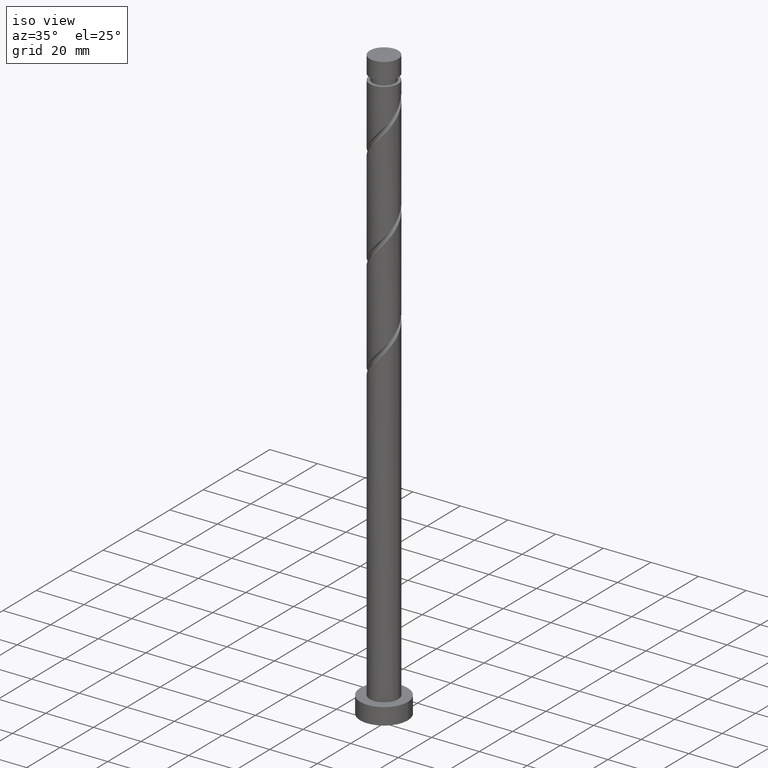
[diagram: clean part render]
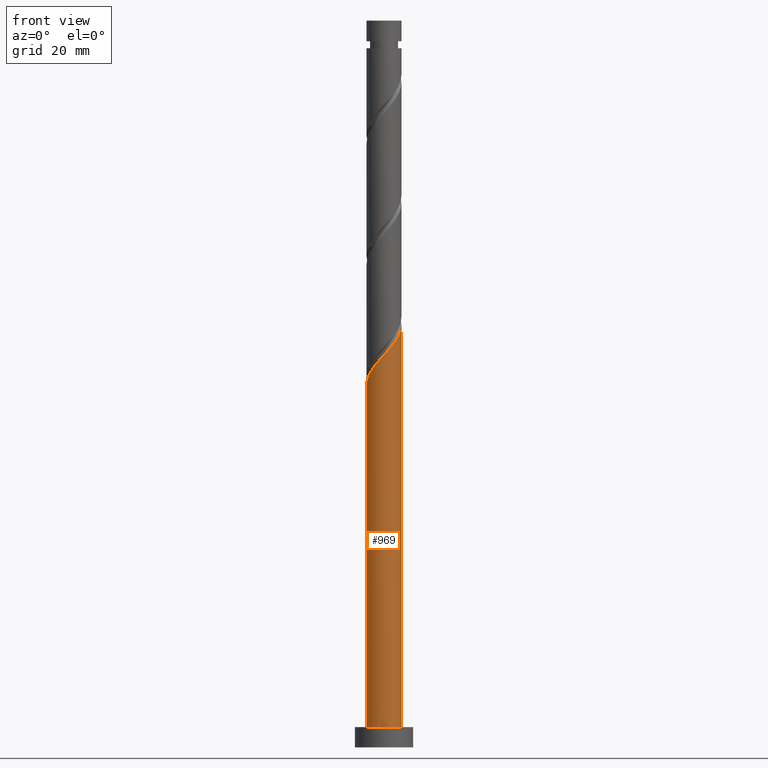
[diagram: tour spotlight — one face highlighted and labeled with its STEP entity id]
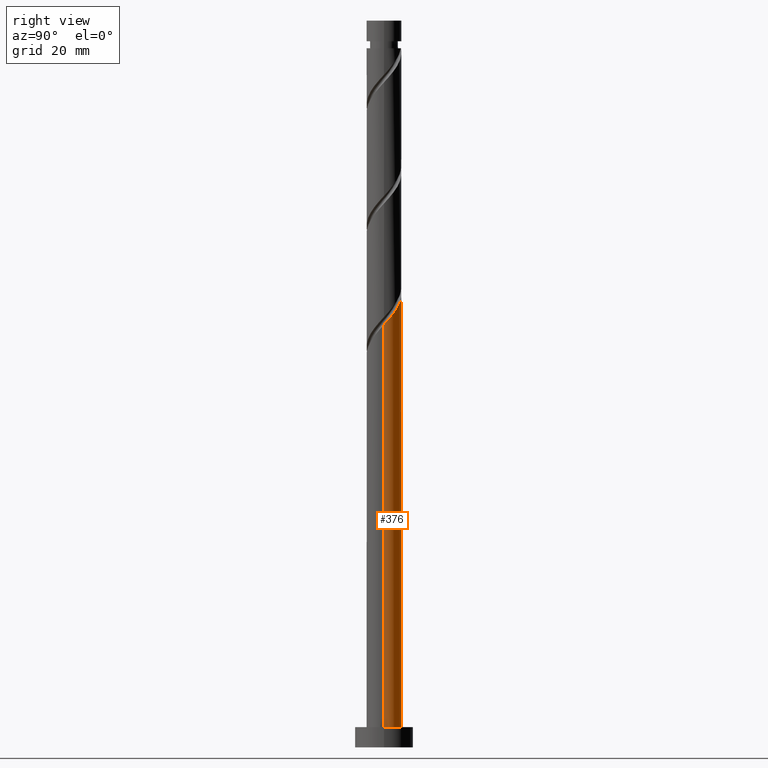
[diagram: tour spotlight — one face highlighted and labeled with its STEP entity id]
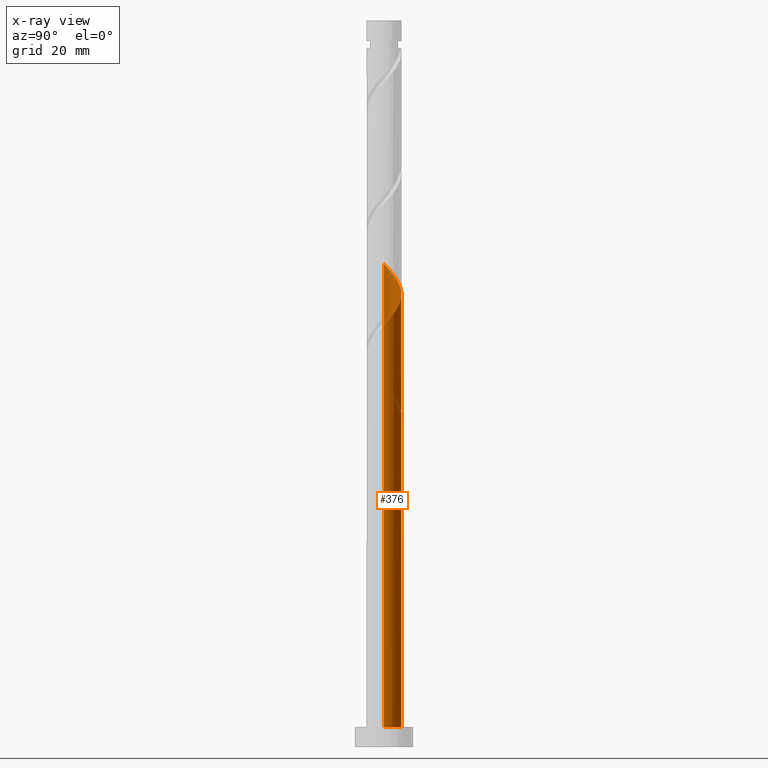
[diagram: x-ray of the same camera — body ghosted, this tour face saturated]
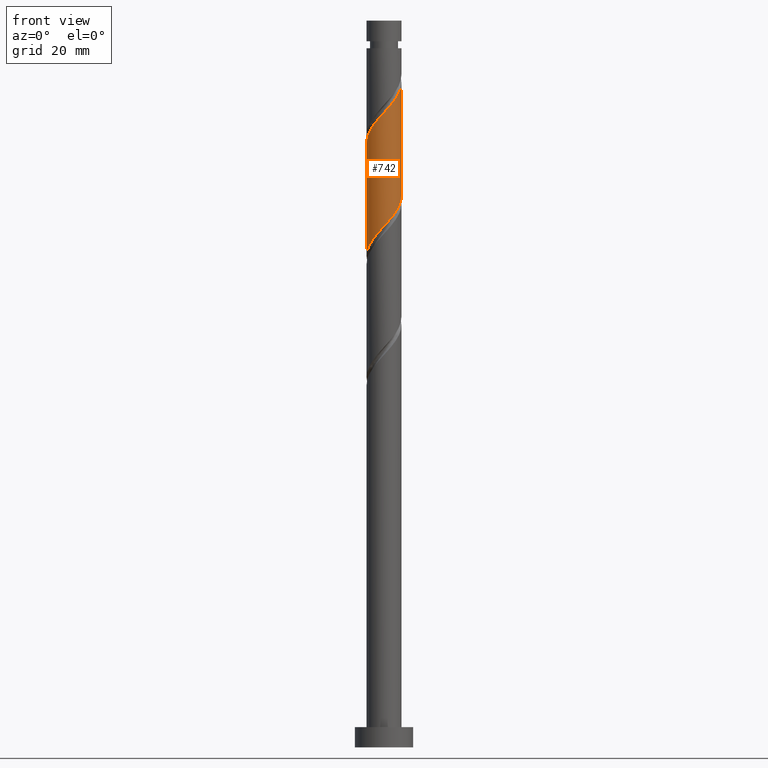
[diagram: tour spotlight — one face highlighted and labeled with its STEP entity id]
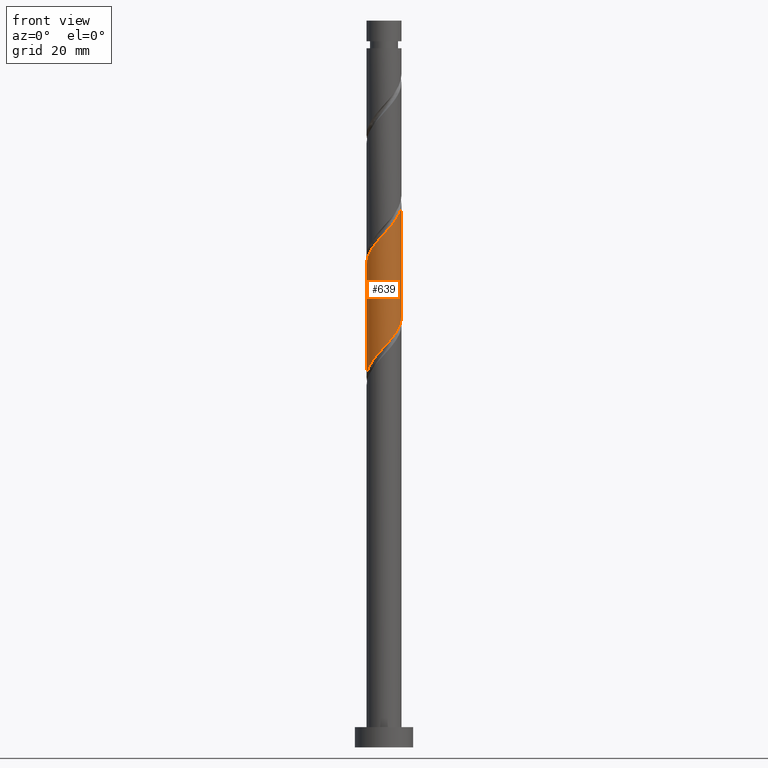
[diagram: tour spotlight — one face highlighted and labeled with its STEP entity id]
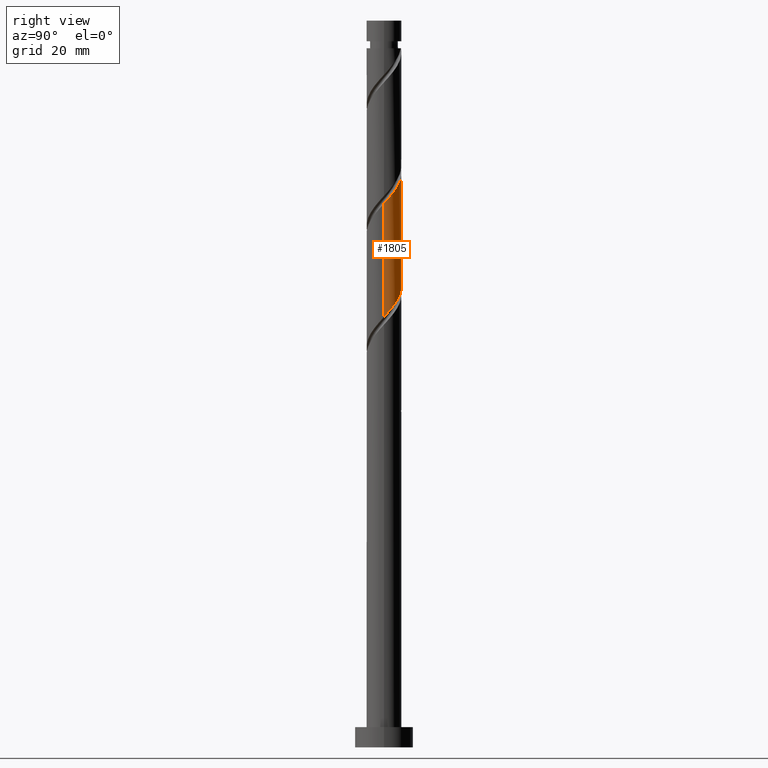
[diagram: tour spotlight — one face highlighted and labeled with its STEP entity id]
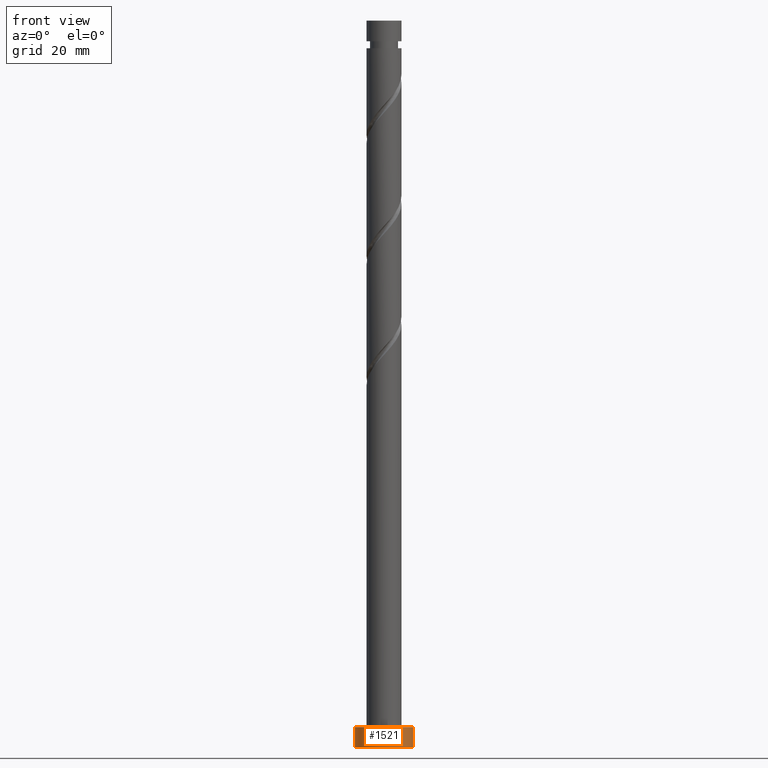
[diagram: tour spotlight — one face highlighted and labeled with its STEP entity id]
A machine part: a face-by-face anatomy tour. The part has 21 B-rep faces; the first image is the clean iso view, then the 6 largest visible faces are spotlighted one at a time (largest first), each with its STEP entity span.

Face 1 — front view, entity #969. In plain terms, the highlighted cylindrical surface (edge-blend (fillet) strip) has radius 6 mm, axis along (-0, -0, -1).
Definition (entity closure, byte-faithful):
#4 = CIRCLE ( 'NONE', #679, 6.000000000000000888 ) ;
#25 = CARTESIAN_POINT ( 'NONE',  ( 6.000000000000008882, 1.046915697330070137E-15, 145.4212293058632781 ) ) ;
#35 = CARTESIAN_POINT ( 'NONE',  ( 3.789793397579724665, -4.651608969341815225, 139.5376127202167140 ) ) ;
#57 = LINE ( 'NONE', #613, #1374 ) ;
#61 = ORIENTED_EDGE ( 'NONE', *, *, #1017, .F. ) ;
#81 = DIRECTION ( 'NONE',  ( 0.000000000000000000, 0.000000000000000000, 1.000000000000000000 ) ) ;
#90 =( BOUNDED_CURVE ( )  B_SPLINE_CURVE ( 2, ( #873, #176, #424, #731, #1133, #1600, #1421, #1282, #1308, #1707, #1572, #459, #323, #1716, #295, #1430, #882, #714, #1290, #573, #35, #440, #304, #862, #1439, #168, #722, #1298, #25 ),
 .UNSPECIFIED., .F., .T. ) 
 B_SPLINE_CURVE_WITH_KNOTS ( ( 3, 2, 2, 2, 2, 2, 2, 2, 2, 2, 2, 2, 2, 2, 3 ),
 ( 0.05452716259738328575, 0.05769230769230770939, 0.06730769230769229061, 0.07692307692307687184, 0.08653846153846156408, 0.09615384615384614531, 0.1057692307692307265, 0.1153846153846154188, 0.1249999999999999861, 0.1346153846153845812, 0.1442307692307692735, 0.1538461538461538547, 0.1634615384615384359, 0.1730769230769231282, 0.1795271625973832719 ),
 .UNSPECIFIED. ) 
 CURVE ( )  GEOMETRIC_REPRESENTATION_ITEM ( )  RATIONAL_B_SPLINE_CURVE ( ( 0.9061636035682811841, 0.9069090390690699444, 0.9090909090909264911, 0.9024626128164299210, 0.9090909090909264911, 0.9024626128164299210, 0.9090909090909264911, 0.9024626128164299210, 0.9090909090909264911, 0.9024626128164299210, 0.9090909090909264911, 0.9024626128164299210, 0.9090909090909264911, 0.9024626128164299210, 0.9090909090909264911, 0.9024626128164299210, 0.9090909090909264911, 0.9024626128164299210, 0.9090909090909264911, 0.9024626128164299210, 0.9090909090909264911, 0.9024626128164299210, 0.9090909090909264911, 0.9024626128164299210, 0.9090909090909264911, 0.9024626128164299210, 0.9090909090909264911, 0.9046444828382864678, 0.9061636035682811841 ) ) 
 REPRESENTATION_ITEM ( '' )  );
#168 = CARTESIAN_POINT ( 'NONE',  ( 5.803669174988027812, -1.687656018162604576, 143.5440229766269624 ) ) ;
#176 = CARTESIAN_POINT ( 'NONE',  ( -6.000000000000009770, -0.2386387820206062882, 124.8520668881629518 ) ) ;
#295 = CARTESIAN_POINT ( 'NONE',  ( -0.2478862134103723414, -5.994877181827929391, 134.7299204125243648 ) ) ;
#304 = CARTESIAN_POINT ( 'NONE',  ( 4.792871779619308548, -3.609484742193674656, 141.1401768227808304 ) ) ;
#313 = CARTESIAN_POINT ( 'NONE',  ( 0.000000000000000000, 0.000000000000000000, 250.0000000000000000 ) ) ;
#323 = CARTESIAN_POINT ( 'NONE',  ( -1.675351105655001005, -5.761353892339948324, 133.1273563099602768 ) ) ;
#424 = CARTESIAN_POINT ( 'NONE',  ( -5.981047158774067007, -0.4765237502168855888, 125.1145357971398226 ) ) ;
#440 = CARTESIAN_POINT ( 'NONE',  ( 4.354600983811662829, -4.191444739005057762, 140.3388947714988149 ) ) ;
#459 = CARTESIAN_POINT ( 'NONE',  ( -2.374906121308207219, -5.557929438497708929, 132.3260742586782612 ) ) ;
#499 = DIRECTION ( 'NONE',  ( 1.000000000000000000, 0.000000000000000000, 0.000000000000000000 ) ) ;
#545 = VERTEX_POINT ( 'NONE', #1838 ) ;
#573 = CARTESIAN_POINT ( 'NONE',  ( 3.224985811347784725, -5.111773199678576241, 138.7363306689346985 ) ) ;
#583 = DIRECTION ( 'NONE',  ( -0.000000000000000000, -0.000000000000000000, -1.000000000000000000 ) ) ;
#594 = FACE_OUTER_BOUND ( 'NONE', #1720, .T. ) ;
#613 = CARTESIAN_POINT ( 'NONE',  ( -6.000000000000000888, 0.000000000000000000, 250.0000000000000000 ) ) ;
#622 = DIRECTION ( 'NONE',  ( -0.000000000000000000, -0.000000000000000000, -1.000000000000000000 ) ) ;
#658 = EDGE_CURVE ( 'NONE', #1032, #545, #57, .T. ) ;
#679 = AXIS2_PLACEMENT_3D ( 'NONE', #779, #81, #499 ) ;
#696 = DIRECTION ( 'NONE',  ( -1.000000000000000000, 0.000000000000000000, 0.000000000000000000 ) ) ;
#714 = CARTESIAN_POINT ( 'NONE',  ( 1.907946185874837886, -5.735023982526343822, 137.1337665663705536 ) ) ;
#722 = CARTESIAN_POINT ( 'NONE',  ( 5.921288396282968769, -0.9686814378549655213, 144.3453050279090348 ) ) ;
#731 = CARTESIAN_POINT ( 'NONE',  ( -5.923186699970223401, -1.202754357981100197, 125.9158178484218809 ) ) ;
#779 = CARTESIAN_POINT ( 'NONE',  ( 0.000000000000000000, 0.000000000000000000, 7.000000000000000000 ) ) ;
#852 = CYLINDRICAL_SURFACE ( 'NONE', #1223, 6.000000000000000888 ) ;
#862 = CARTESIAN_POINT ( 'NONE',  ( 5.231142575426955155, -3.027524745382295546, 141.9414588740628744 ) ) ;
#873 = CARTESIAN_POINT ( 'NONE',  ( -6.000000000000008882, -1.764800746927832545E-15, 124.5878959725299922 ) ) ;
#882 = CARTESIAN_POINT ( 'NONE',  ( 1.193984924527945246, -5.880000000000008775, 136.3324845150885665 ) ) ;
#933 = CARTESIAN_POINT ( 'NONE',  ( 6.000000000000008882, 1.046915697330070137E-15, 145.4212293058632781 ) ) ;
#969 = ADVANCED_FACE ( 'NONE', ( #594 ), #852, .T. ) ;
#1017 = EDGE_CURVE ( 'NONE', #1032, #1576, #90, .T. ) ;
#1032 = VERTEX_POINT ( 'NONE', #1152 ) ;
#1064 = CARTESIAN_POINT ( 'NONE',  ( 6.000000000000000888, 7.347880794884120722E-16, 7.000000000000000000 ) ) ;
#1133 = CARTESIAN_POINT ( 'NONE',  ( -5.693209200619064880, -1.894035110019486767, 126.7170998997039248 ) ) ;
#1152 = CARTESIAN_POINT ( 'NONE',  ( -6.000000000000008882, -1.764800746927832545E-15, 124.5878959725299922 ) ) ;
#1164 = EDGE_CURVE ( 'NONE', #1576, #1748, #1181, .T. ) ;
#1181 = LINE ( 'NONE', #1744, #1458 ) ;
#1183 = DIRECTION ( 'NONE',  ( -0.000000000000000000, -0.000000000000000000, -1.000000000000000000 ) ) ;
#1223 = AXIS2_PLACEMENT_3D ( 'NONE', #313, #583, #696 ) ;
#1282 = CARTESIAN_POINT ( 'NONE',  ( -4.685773534127142703, -3.817628205472646918, 129.1209460535500853 ) ) ;
#1290 = CARTESIAN_POINT ( 'NONE',  ( 2.566465998611311417, -5.423398591102462696, 137.9350486176525692 ) ) ;
#1298 = CARTESIAN_POINT ( 'NONE',  ( 6.000000000000008882, -0.4875386312222760865, 144.8815285685149377 ) ) ;
#1308 = CARTESIAN_POINT ( 'NONE',  ( -4.160884387701920595, -4.322851039785954974, 129.9222281048321008 ) ) ;
#1314 = ORIENTED_EDGE ( 'NONE', *, *, #1724, .T. ) ;
#1374 = VECTOR ( 'NONE', #1183, 1000.000000000000000 ) ;
#1390 = ORIENTED_EDGE ( 'NONE', *, *, #658, .T. ) ;
#1421 = CARTESIAN_POINT ( 'NONE',  ( -5.074502617697525864, -3.201472033765260239, 128.3196640022679844 ) ) ;
#1430 = CARTESIAN_POINT ( 'NONE',  ( 0.4800236631810502197, -6.024976017473672840, 135.5312024638064656 ) ) ;
#1439 = CARTESIAN_POINT ( 'NONE',  ( 5.517405875207491484, -2.357590381772447508, 142.7427409253449184 ) ) ;
#1458 = VECTOR ( 'NONE', #622, 1000.000000000000000 ) ;
#1572 = CARTESIAN_POINT ( 'NONE',  ( -3.005450681292455073, -5.193001656298486424, 131.5247922073961888 ) ) ;
#1576 = VERTEX_POINT ( 'NONE', #933 ) ;
#1600 = CARTESIAN_POINT ( 'NONE',  ( -5.463231701267906359, -2.585315862057875780, 127.5183819509859688 ) ) ;
#1627 = ORIENTED_EDGE ( 'NONE', *, *, #1164, .F. ) ;
#1707 = CARTESIAN_POINT ( 'NONE',  ( -3.635995241276700263, -4.828073874099263030, 130.7235101561141448 ) ) ;
#1716 = CARTESIAN_POINT ( 'NONE',  ( -0.9757960900017952355, -5.964778346182185942, 133.9286383612423776 ) ) ;
#1720 = EDGE_LOOP ( 'NONE', ( #1627, #61, #1390, #1314 ) ) ;
#1724 = EDGE_CURVE ( 'NONE', #545, #1748, #4, .T. ) ;
#1744 = CARTESIAN_POINT ( 'NONE',  ( 6.000000000000000888, 7.347880794884120722E-16, 250.0000000000000000 ) ) ;
#1748 = VERTEX_POINT ( 'NONE', #1064 ) ;
#1838 = CARTESIAN_POINT ( 'NONE',  ( -6.000000000000000888, 0.000000000000000000, 7.000000000000000000 ) ) ;

Face 2 — right view, entity #376. An x-ray twin of the same camera follows (body ghosted, this face saturated) — the face is partly hidden behind the body. In plain terms, the highlighted cylindrical surface (edge-blend (fillet) strip) has radius 6 mm, axis along (-0, -0, -1).
Definition (entity closure, byte-faithful):
#15 = CARTESIAN_POINT ( 'NONE',  ( 0.4800236631810532173, 6.024976017473666623, 116.3004332330372677 ) ) ;
#20 = ORIENTED_EDGE ( 'NONE', *, *, #658, .F. ) ;
#23 = CARTESIAN_POINT ( 'NONE',  ( 3.005450681292455961, 5.193001656298486424, 152.3581255407295600 ) ) ;
#26 = DIRECTION ( 'NONE',  ( -1.000000000000000000, 0.000000000000000000, 0.000000000000000000 ) ) ;
#57 = LINE ( 'NONE', #613, #1374 ) ;
#130 = CIRCLE ( 'NONE', #531, 6.000000000000000888 ) ;
#147 = CARTESIAN_POINT ( 'NONE',  ( -5.981047158774059014, 0.4765237502168877537, 126.7170998997038964 ) ) ;
#154 = CIRCLE ( 'NONE', #1580, 6.000000000000000888 ) ;
#158 = CARTESIAN_POINT ( 'NONE',  ( -6.000000000000000888, 4.038103403987439502E-15, 127.2437397243137411 ) ) ;
#173 = CARTESIAN_POINT ( 'NONE',  ( 4.160884387701922371, 4.322851039785954974, 150.7555614381654152 ) ) ;
#181 = CARTESIAN_POINT ( 'NONE',  ( -6.000000000000008882, -1.764800746927832545E-15, 166.2545626391966209 ) ) ;
#187 = CARTESIAN_POINT ( 'NONE',  ( -6.000000000000000888, 0.000000000000000000, 250.0000000000000000 ) ) ;
#188 = CARTESIAN_POINT ( 'NONE',  ( -5.921288396282968769, 0.9686814378549650772, 123.5119716945756920 ) ) ;
#193 = CARTESIAN_POINT ( 'NONE',  ( -5.231142575426956043, 3.027524745382293325, 162.7747922073961888 ) ) ;
#196 = DIRECTION ( 'NONE',  ( -0.000000000000000000, -0.000000000000000000, -1.000000000000000000 ) ) ;
#197 = CARTESIAN_POINT ( 'NONE',  ( -4.354600983811663717, 4.191444739005056874, 119.5055614381654294 ) ) ;
#215 = CARTESIAN_POINT ( 'NONE',  ( -6.000000000000009770, 0.4875386312222773078, 124.0481952351816517 ) ) ;
#224 = CARTESIAN_POINT ( 'NONE',  ( -3.224985811347787390, 5.111773199678575352, 117.9029973356013414 ) ) ;
#270 = FACE_OUTER_BOUND ( 'NONE', #867, .T. ) ;
#302 = CARTESIAN_POINT ( 'NONE',  ( 3.635995241276702927, 4.828073874099260365, 151.5568434894474308 ) ) ;
#310 = CARTESIAN_POINT ( 'NONE',  ( -0.4800236631810495536, 6.024976017473672840, 156.3645357971398369 ) ) ;
#324 = CARTESIAN_POINT ( 'NONE',  ( -3.789793397579725109, 4.651608969341815225, 118.7042793868833854 ) ) ;
#332 = LINE ( 'NONE', #187, #418 ) ;
#333 = CARTESIAN_POINT ( 'NONE',  ( -2.566465998611312749, 5.423398591102460031, 117.1017152843192548 ) ) ;
#350 = DIRECTION ( 'NONE',  ( 1.000000000000000000, 0.000000000000000000, 0.000000000000000000 ) ) ;
#366 = CARTESIAN_POINT ( 'NONE',  ( 0.000000000000000000, 0.000000000000000000, 7.000000000000000000 ) ) ;
#376 = ADVANCED_FACE ( 'NONE', ( #270 ), #1651, .T. ) ;
#397 = EDGE_CURVE ( 'NONE', #1833, #536, #154, .T. ) ;
#418 = VECTOR ( 'NONE', #196, 1000.000000000000000 ) ;
#432 = CARTESIAN_POINT ( 'NONE',  ( -2.374906121308203222, 5.557929438497705377, 119.5055614381654436 ) ) ;
#434 = CARTESIAN_POINT ( 'NONE',  ( -1.193984924527944358, 5.880000000000007887, 115.4991511817551952 ) ) ;
#438 = CARTESIAN_POINT ( 'NONE',  ( 5.923186699970223401, 1.202754357981099087, 146.7491511817551384 ) ) ;
#447 = CARTESIAN_POINT ( 'NONE',  ( 0.2478862134103759218, 5.994877181827931167, 155.5632537458577644 ) ) ;
#450 = CARTESIAN_POINT ( 'NONE',  ( -4.160884387701912601, 4.322851039785952310, 121.9094075920115756 ) ) ;
#469 = CARTESIAN_POINT ( 'NONE',  ( -1.907946185874839440, 5.735023982526343822, 116.3004332330372250 ) ) ;
#494 = CARTESIAN_POINT ( 'NONE',  ( -5.517405875207491484, 2.357590381772447508, 121.9094075920115614 ) ) ;
#531 = AXIS2_PLACEMENT_3D ( 'NONE', #366, #794, #350 ) ;
#536 = VERTEX_POINT ( 'NONE', #1693 ) ;
#545 = VERTEX_POINT ( 'NONE', #1838 ) ;
#565 = CARTESIAN_POINT ( 'NONE',  ( -1.675351105654997008, 5.761353892339941218, 118.7042793868833712 ) ) ;
#569 = ORIENTED_EDGE ( 'NONE', *, *, #944, .F. ) ;
#580 = CARTESIAN_POINT ( 'NONE',  ( 2.374906121308208995, 5.557929438497708929, 153.1594075920115472 ) ) ;
#582 = EDGE_CURVE ( 'NONE', #1833, #1032, #1745, .T. ) ;
#589 = CARTESIAN_POINT ( 'NONE',  ( -2.566465998611312749, 5.423398591102460031, 158.7683819509859120 ) ) ;
#609 = CARTESIAN_POINT ( 'NONE',  ( -5.517405875207491484, 2.357590381772447508, 163.5760742586782328 ) ) ;
#613 = CARTESIAN_POINT ( 'NONE',  ( -6.000000000000000888, 0.000000000000000000, 250.0000000000000000 ) ) ;
#622 = DIRECTION ( 'NONE',  ( -0.000000000000000000, -0.000000000000000000, -1.000000000000000000 ) ) ;
#658 = EDGE_CURVE ( 'NONE', #1032, #545, #57, .T. ) ;
#693 = ORIENTED_EDGE ( 'NONE', *, *, #1506, .F. ) ;
#698 = CARTESIAN_POINT ( 'NONE',  ( 0.000000000000000000, 0.000000000000000000, 115.4991511817551952 ) ) ;
#704 = CARTESIAN_POINT ( 'NONE',  ( -3.635995241276694490, 4.828073874099260365, 121.1081255407295743 ) ) ;
#708 =( BOUNDED_CURVE ( )  B_SPLINE_CURVE ( 2, ( #158, #1272, #147, #844, #990, #1582, #1143, #1836, #450, #704, #1449, #432, #565, #981, #1699, #15, #1007 ),
 .UNSPECIFIED., .F., .T. ) 
 B_SPLINE_CURVE_WITH_KNOTS ( ( 3, 2, 2, 2, 2, 2, 2, 2, 3 ),
 ( 0.9295271625973833274, 0.9326923076923077094, 0.9423076923076922906, 0.9519230769230768718, 0.9615384615384615641, 0.9711538461538461453, 0.9807692307692307265, 0.9903846153846154188, 1.000000000000000000 ),
 .UNSPECIFIED. ) 
 CURVE ( )  GEOMETRIC_REPRESENTATION_ITEM ( )  RATIONAL_B_SPLINE_CURVE ( ( 0.9061636035682755219, 0.9069090390690641712, 0.9090909090909207180, 0.9024626128164241479, 0.9090909090909207180, 0.9024626128164241479, 0.9090909090909207180, 0.9024626128164241479, 0.9090909090909207180, 0.9024626128164241479, 0.9090909090909207180, 0.9024626128164241479, 0.9090909090909207180, 0.9024626128164241479, 0.9090909090909207180, 0.9024626128164241479, 0.9090909090909207180 ) ) 
 REPRESENTATION_ITEM ( '' )  );
#749 = CARTESIAN_POINT ( 'NONE',  ( -3.789793397579725109, 4.651608969341815225, 160.3709460535500284 ) ) ;
#753 = CARTESIAN_POINT ( 'NONE',  ( -6.000000000000008882, -1.764800746927832545E-15, 166.2545626391966209 ) ) ;
#764 = CARTESIAN_POINT ( 'NONE',  ( -6.000000000000008882, -1.764800746927832545E-15, 124.5878959725299922 ) ) ;
#794 = DIRECTION ( 'NONE',  ( 0.000000000000000000, 0.000000000000000000, 1.000000000000000000 ) ) ;
#828 = CARTESIAN_POINT ( 'NONE',  ( 0.000000000000000000, 0.000000000000000000, 250.0000000000000000 ) ) ;
#844 = CARTESIAN_POINT ( 'NONE',  ( -5.923186699970216296, 1.202754357981100419, 125.9158178484218951 ) ) ;
#848 = VERTEX_POINT ( 'NONE', #1226 ) ;
#867 = EDGE_LOOP ( 'NONE', ( #693, #1635, #1240, #20, #1012, #1092, #569, #1595 ) ) ;
#879 = CARTESIAN_POINT ( 'NONE',  ( -5.803669174988029589, 1.687656018162601024, 164.3773563099602768 ) ) ;
#883 = CARTESIAN_POINT ( 'NONE',  ( -4.792871779619309436, 3.609484742193674212, 120.3068434894474876 ) ) ;
#888 = CARTESIAN_POINT ( 'NONE',  ( 4.685773534127145368, 3.817628205472644254, 149.9542793868833428 ) ) ;
#904 = CARTESIAN_POINT ( 'NONE',  ( -1.193984924527944358, 5.880000000000007887, 115.4991511817551952 ) ) ;
#931 = DIRECTION ( 'NONE',  ( -1.000000000000000000, 0.000000000000000000, 0.000000000000000000 ) ) ;
#933 = CARTESIAN_POINT ( 'NONE',  ( 6.000000000000008882, 1.046915697330070137E-15, 145.4212293058632781 ) ) ;
#944 = EDGE_CURVE ( 'NONE', #848, #536, #708, .T. ) ;
#981 = CARTESIAN_POINT ( 'NONE',  ( -0.9757960900017910166, 5.964778346182179725, 117.9029973356013556 ) ) ;
#990 = CARTESIAN_POINT ( 'NONE',  ( -5.693209200619056887, 1.894035110019486767, 125.1145357971398226 ) ) ;
#1005 = CARTESIAN_POINT ( 'NONE',  ( 0.9757960900017957906, 5.964778346182185942, 154.7619716945756920 ) ) ;
#1007 = CARTESIAN_POINT ( 'NONE',  ( 1.193984924527946578, 5.880000000000001670, 115.4991511817551810 ) ) ;
#1012 = ORIENTED_EDGE ( 'NONE', *, *, #582, .F. ) ;
#1023 = CARTESIAN_POINT ( 'NONE',  ( 6.000000000000009770, 0.2386387820206061217, 145.6854002214962236 ) ) ;
#1032 = VERTEX_POINT ( 'NONE', #1152 ) ;
#1035 = CARTESIAN_POINT ( 'NONE',  ( 5.074502617697525864, 3.201472033765261127, 149.1529973356012704 ) ) ;
#1064 = CARTESIAN_POINT ( 'NONE',  ( 6.000000000000000888, 7.347880794884120722E-16, 7.000000000000000000 ) ) ;
#1076 = EDGE_CURVE ( 'NONE', #1200, #848, #332, .T. ) ;
#1092 = ORIENTED_EDGE ( 'NONE', *, *, #397, .T. ) ;
#1143 = CARTESIAN_POINT ( 'NONE',  ( -5.074502617697516094, 3.201472033765258463, 123.5119716945756920 ) ) ;
#1152 = CARTESIAN_POINT ( 'NONE',  ( -6.000000000000008882, -1.764800746927832545E-15, 124.5878959725299922 ) ) ;
#1159 = CARTESIAN_POINT ( 'NONE',  ( -3.224985811347787390, 5.111773199678575352, 159.5696640022679560 ) ) ;
#1164 = EDGE_CURVE ( 'NONE', #1576, #1748, #1181, .T. ) ;
#1178 = CARTESIAN_POINT ( 'NONE',  ( -5.921288396282968769, 0.9686814378549650772, 165.1786383612423492 ) ) ;
#1181 = LINE ( 'NONE', #1744, #1458 ) ;
#1183 = DIRECTION ( 'NONE',  ( -0.000000000000000000, -0.000000000000000000, -1.000000000000000000 ) ) ;
#1200 = VERTEX_POINT ( 'NONE', #753 ) ;
#1226 = CARTESIAN_POINT ( 'NONE',  ( -6.000000000000000888, 4.038103403987439502E-15, 127.2437397243137411 ) ) ;
#1240 = ORIENTED_EDGE ( 'NONE', *, *, #1710, .T. ) ;
#1272 = CARTESIAN_POINT ( 'NONE',  ( -6.000000000000001776, 0.2386387820206115340, 126.9795688086808099 ) ) ;
#1304 = CARTESIAN_POINT ( 'NONE',  ( -1.907946185874839440, 5.735023982526343822, 157.9670998997039533 ) ) ;
#1316 = CARTESIAN_POINT ( 'NONE',  ( 5.981047158774067007, 0.4765237502168834793, 145.9478691304731512 ) ) ;
#1374 = VECTOR ( 'NONE', #1183, 1000.000000000000000 ) ;
#1406 = DIRECTION ( 'NONE',  ( -0.000000000000000000, -0.000000000000000000, -1.000000000000000000 ) ) ;
#1446 = CARTESIAN_POINT ( 'NONE',  ( -1.193984924527944358, 5.880000000000008775, 157.1658178484219093 ) ) ;
#1449 = CARTESIAN_POINT ( 'NONE',  ( -3.005450681292447968, 5.193001656298481095, 120.3068434894474876 ) ) ;
#1454 = CARTESIAN_POINT ( 'NONE',  ( -6.000000000000009770, 0.4875386312222743102, 165.7148619018483089 ) ) ;
#1458 = VECTOR ( 'NONE', #622, 1000.000000000000000 ) ;
#1459 = CARTESIAN_POINT ( 'NONE',  ( -5.803669174988029589, 1.687656018162601024, 122.7106896432936054 ) ) ;
#1464 = CARTESIAN_POINT ( 'NONE',  ( 1.675351105655004114, 5.761353892339948324, 153.9606896432935912 ) ) ;
#1487 = CARTESIAN_POINT ( 'NONE',  ( -5.231142575426956043, 3.027524745382293325, 121.1081255407295458 ) ) ;
#1506 = EDGE_CURVE ( 'NONE', #1576, #1200, #1735, .T. ) ;
#1576 = VERTEX_POINT ( 'NONE', #933 ) ;
#1578 = CARTESIAN_POINT ( 'NONE',  ( 5.463231701267908136, 2.585315862057873115, 148.3517152843193685 ) ) ;
#1580 = AXIS2_PLACEMENT_3D ( 'NONE', #698, #1717, #26 ) ;
#1582 = CARTESIAN_POINT ( 'NONE',  ( -5.463231701267899254, 2.585315862057873559, 124.3132537458577787 ) ) ;
#1589 = CARTESIAN_POINT ( 'NONE',  ( 6.000000000000008882, 1.046915697330070137E-15, 145.4212293058632781 ) ) ;
#1595 = ORIENTED_EDGE ( 'NONE', *, *, #1076, .F. ) ;
#1597 = CARTESIAN_POINT ( 'NONE',  ( -4.792871779619309436, 3.609484742193674212, 161.9735101561141164 ) ) ;
#1606 = CARTESIAN_POINT ( 'NONE',  ( 5.693209200619064880, 1.894035110019484103, 147.5504332330372392 ) ) ;
#1635 = ORIENTED_EDGE ( 'NONE', *, *, #1164, .T. ) ;
#1651 = CYLINDRICAL_SURFACE ( 'NONE', #1697, 6.000000000000000888 ) ;
#1693 = CARTESIAN_POINT ( 'NONE',  ( 1.193984924527946800, 5.880000000000000782, 115.4991511817551952 ) ) ;
#1697 = AXIS2_PLACEMENT_3D ( 'NONE', #828, #1406, #931 ) ;
#1699 = CARTESIAN_POINT ( 'NONE',  ( -0.2478862134103690662, 5.994877181827922286, 117.1017152843192832 ) ) ;
#1710 = EDGE_CURVE ( 'NONE', #1748, #545, #130, .T. ) ;
#1717 = DIRECTION ( 'NONE',  ( 0.000000000000000000, -0.000000000000000000, -1.000000000000000000 ) ) ;
#1732 = CARTESIAN_POINT ( 'NONE',  ( -4.354600983811663717, 4.191444739005056874, 161.1722281048320724 ) ) ;
#1735 =( BOUNDED_CURVE ( )  B_SPLINE_CURVE ( 2, ( #1589, #1023, #1316, #438, #1606, #1578, #1035, #888, #173, #302, #23, #580, #1464, #1005, #447, #310, #1446, #1304, #589, #1159, #749, #1732, #1597, #193, #609, #879, #1178, #1454, #181 ),
 .UNSPECIFIED., .F., .T. ) 
 B_SPLINE_CURVE_WITH_KNOTS ( ( 3, 2, 2, 2, 2, 2, 2, 2, 2, 2, 2, 2, 2, 2, 3 ),
 ( 0.1795271625973832996, 0.1826923076923077094, 0.1923076923076922906, 0.2019230769230768718, 0.2115384615384615641, 0.2211538461538461453, 0.2307692307692307265, 0.2403846153846154188, 0.2500000000000000000, 0.2596153846153845812, 0.2692307692307692735, 0.2788461538461538547, 0.2884615384615384359, 0.2980769230769231282, 0.3045271625973833274 ),
 .UNSPECIFIED. ) 
 CURVE ( )  GEOMETRIC_REPRESENTATION_ITEM ( )  RATIONAL_B_SPLINE_CURVE ( ( 0.9061636035682811841, 0.9069090390690699444, 0.9090909090909264911, 0.9024626128164299210, 0.9090909090909264911, 0.9024626128164299210, 0.9090909090909264911, 0.9024626128164299210, 0.9090909090909264911, 0.9024626128164299210, 0.9090909090909264911, 0.9024626128164299210, 0.9090909090909264911, 0.9024626128164299210, 0.9090909090909264911, 0.9024626128164299210, 0.9090909090909264911, 0.9024626128164299210, 0.9090909090909264911, 0.9024626128164299210, 0.9090909090909264911, 0.9024626128164299210, 0.9090909090909264911, 0.9024626128164299210, 0.9090909090909264911, 0.9024626128164299210, 0.9090909090909264911, 0.9046444828382864678, 0.9061636035682812951 ) ) 
 REPRESENTATION_ITEM ( '' )  );
#1744 = CARTESIAN_POINT ( 'NONE',  ( 6.000000000000000888, 7.347880794884120722E-16, 250.0000000000000000 ) ) ;
#1745 =( BOUNDED_CURVE ( )  B_SPLINE_CURVE ( 2, ( #904, #469, #333, #224, #324, #197, #883, #1487, #494, #1459, #188, #215, #764 ),
 .UNSPECIFIED., .F., .T. ) 
 B_SPLINE_CURVE_WITH_KNOTS ( ( 3, 2, 2, 2, 2, 2, 3 ),
 ( 0.000000000000000000, 0.009615384615384581224, 0.01923076923076927347, 0.02884615384615385469, 0.03846153846153843592, 0.04807692307692312816, 0.05452716259738328575 ),
 .UNSPECIFIED. ) 
 CURVE ( )  GEOMETRIC_REPRESENTATION_ITEM ( )  RATIONAL_B_SPLINE_CURVE ( ( 0.9090909090909264911, 0.9024626128164299210, 0.9090909090909264911, 0.9024626128164299210, 0.9090909090909264911, 0.9024626128164299210, 0.9090909090909264911, 0.9024626128164299210, 0.9090909090909264911, 0.9024626128164299210, 0.9090909090909264911, 0.9046444828382864678, 0.9061636035682811841 ) ) 
 REPRESENTATION_ITEM ( '' )  );
#1748 = VERTEX_POINT ( 'NONE', #1064 ) ;
#1833 = VERTEX_POINT ( 'NONE', #434 ) ;
#1836 = CARTESIAN_POINT ( 'NONE',  ( -4.685773534127136486, 3.817628205472644698, 122.7106896432936622 ) ) ;
#1838 = CARTESIAN_POINT ( 'NONE',  ( -6.000000000000000888, 0.000000000000000000, 7.000000000000000000 ) ) ;

Face 3 — front view, entity #742. In plain terms, the highlighted cylindrical surface (edge-blend (fillet) strip) has radius 6 mm, axis along (-0, -0, -1).
Definition (entity closure, byte-faithful):
#38 =( BOUNDED_CURVE ( )  B_SPLINE_CURVE ( 2, ( #1665, #799, #386, #669, #835, #1534, #1243, #1376, #1105, #1524, #260, #1656, #825, #105, #251, #808, #651, #414, #1235, #406, #121, #659, #1801, #936, #1264, #1385, #816, #971, #955 ),
 .UNSPECIFIED., .F., .T. ) 
 B_SPLINE_CURVE_WITH_KNOTS ( ( 3, 2, 2, 2, 2, 2, 2, 2, 2, 2, 2, 2, 2, 2, 3 ),
 ( 0.5545271625973832164, 0.5576923076923077094, 0.5673076923076922906, 0.5769230769230768718, 0.5865384615384615641, 0.5961538461538461453, 0.6057692307692307265, 0.6153846153846154188, 0.6250000000000000000, 0.6346153846153845812, 0.6442307692307692735, 0.6538461538461538547, 0.6634615384615384359, 0.6730769230769231282, 0.6795271625973833274 ),
 .UNSPECIFIED. ) 
 CURVE ( )  GEOMETRIC_REPRESENTATION_ITEM ( )  RATIONAL_B_SPLINE_CURVE ( ( 0.9061636035682756329, 0.9069090390690641712, 0.9090909090909207180, 0.9024626128164241479, 0.9090909090909207180, 0.9024626128164241479, 0.9090909090909207180, 0.9024626128164241479, 0.9090909090909207180, 0.9024626128164241479, 0.9090909090909207180, 0.9024626128164241479, 0.9090909090909207180, 0.9024626128164241479, 0.9090909090909207180, 0.9024626128164241479, 0.9090909090909207180, 0.9024626128164241479, 0.9090909090909207180, 0.9024626128164241479, 0.9090909090909207180, 0.9024626128164241479, 0.9090909090909207180, 0.9024626128164241479, 0.9090909090909207180, 0.9024626128164241479, 0.9090909090909207180, 0.9046444828382806946, 0.9061636035682755219 ) ) 
 REPRESENTATION_ITEM ( '' )  );
#47 = CARTESIAN_POINT ( 'NONE',  ( 5.921288396282968769, -0.9686814378549655213, 227.6786383612422924 ) ) ;
#67 = CARTESIAN_POINT ( 'NONE',  ( -3.635995241276700263, -4.828073874099263030, 214.0568434894475445 ) ) ;
#105 = CARTESIAN_POINT ( 'NONE',  ( 0.9757960900017889072, -5.964778346182179725, 180.4029973356013272 ) ) ;
#111 = ORIENTED_EDGE ( 'NONE', *, *, #575, .F. ) ;
#121 = CARTESIAN_POINT ( 'NONE',  ( -3.789793397579722445, -4.651608969341807232, 174.7940229766269908 ) ) ;
#191 = ORIENTED_EDGE ( 'NONE', *, *, #1783, .T. ) ;
#205 = CARTESIAN_POINT ( 'NONE',  ( -2.374906121308207219, -5.557929438497708929, 215.6594075920116040 ) ) ;
#220 =( BOUNDED_CURVE ( )  B_SPLINE_CURVE ( 2, ( #845, #1422, #1708, #433, #1431, #991, #1573, #853, #604, #67, #1623, #205, #1478, #1775, #1027, #460, #743, #1321, #1019, #344, #1172, #1497, #1736, #1469, #1162, #913, #47, #595, #1601 ),
 .UNSPECIFIED., .F., .T. ) 
 B_SPLINE_CURVE_WITH_KNOTS ( ( 3, 2, 2, 2, 2, 2, 2, 2, 2, 2, 2, 2, 2, 2, 3 ),
 ( 0.5545271625973831053, 0.5576923076923077094, 0.5673076923076922906, 0.5769230769230768718, 0.5865384615384615641, 0.5961538461538461453, 0.6057692307692308376, 0.6153846153846154188, 0.6250000000000000000, 0.6346153846153845812, 0.6442307692307691624, 0.6538461538461538547, 0.6634615384615384359, 0.6730769230769231282, 0.6795271625973833274 ),
 .UNSPECIFIED. ) 
 CURVE ( )  GEOMETRIC_REPRESENTATION_ITEM ( )  RATIONAL_B_SPLINE_CURVE ( ( 0.9061636035682811841, 0.9069090390690697223, 0.9090909090909264911, 0.9024626128164299210, 0.9090909090909264911, 0.9024626128164299210, 0.9090909090909264911, 0.9024626128164299210, 0.9090909090909264911, 0.9024626128164299210, 0.9090909090909264911, 0.9024626128164299210, 0.9090909090909264911, 0.9024626128164299210, 0.9090909090909264911, 0.9024626128164299210, 0.9090909090909264911, 0.9024626128164299210, 0.9090909090909264911, 0.9024626128164299210, 0.9090909090909264911, 0.9024626128164299210, 0.9090909090909264911, 0.9024626128164299210, 0.9090909090909264911, 0.9024626128164299210, 0.9090909090909264911, 0.9046444828382864678, 0.9061636035682812951 ) ) 
 REPRESENTATION_ITEM ( '' )  );
#221 = CARTESIAN_POINT ( 'NONE',  ( -6.000000000000000888, 4.038103403987439502E-15, 168.9104063909803983 ) ) ;
#251 = CARTESIAN_POINT ( 'NONE',  ( 0.2478862134103671233, -5.994877181827922286, 179.6017152843192832 ) ) ;
#260 = CARTESIAN_POINT ( 'NONE',  ( 3.005450681292447079, -5.193001656298482871, 182.8068434894474876 ) ) ;
#279 = CARTESIAN_POINT ( 'NONE',  ( 6.000000000000008882, 3.858632141587972029E-15, 228.7545626391966209 ) ) ;
#344 = CARTESIAN_POINT ( 'NONE',  ( 3.224985811347784725, -5.111773199678576241, 222.0696640022679844 ) ) ;
#353 = DIRECTION ( 'NONE',  ( -1.000000000000000000, 0.000000000000000000, 0.000000000000000000 ) ) ;
#386 = CARTESIAN_POINT ( 'NONE',  ( 5.981047158774059014, -0.4765237502168911399, 189.2170998997039248 ) ) ;
#406 = CARTESIAN_POINT ( 'NONE',  ( -3.224985811347786502, -5.111773199678567359, 175.5953050279090633 ) ) ;
#414 = CARTESIAN_POINT ( 'NONE',  ( -1.907946185874840106, -5.735023982526336717, 177.1978691304731512 ) ) ;
#433 = CARTESIAN_POINT ( 'NONE',  ( -5.923186699970223401, -1.202754357981100197, 209.2491511817551952 ) ) ;
#460 = CARTESIAN_POINT ( 'NONE',  ( 0.4800236631810502197, -6.024976017473672840, 218.8645357971397800 ) ) ;
#468 = DIRECTION ( 'NONE',  ( -0.000000000000000000, -0.000000000000000000, -1.000000000000000000 ) ) ;
#486 = FACE_OUTER_BOUND ( 'NONE', #1138, .T. ) ;
#497 = ORIENTED_EDGE ( 'NONE', *, *, #1182, .F. ) ;
#575 = EDGE_CURVE ( 'NONE', #952, #1807, #220, .T. ) ;
#595 = CARTESIAN_POINT ( 'NONE',  ( 6.000000000000008882, -0.4875386312222739771, 228.2148619018482805 ) ) ;
#604 = CARTESIAN_POINT ( 'NONE',  ( -4.160884387701920595, -4.322851039785954974, 213.2555614381654152 ) ) ;
#634 = VERTEX_POINT ( 'NONE', #754 ) ;
#651 = CARTESIAN_POINT ( 'NONE',  ( -1.193984924527945690, -5.879999999999999005, 177.9991511817551668 ) ) ;
#659 = CARTESIAN_POINT ( 'NONE',  ( -4.354600983811661052, -4.191444739005048881, 173.9927409253449184 ) ) ;
#669 = CARTESIAN_POINT ( 'NONE',  ( 5.923186699970216296, -1.202754357981101085, 188.4158178484219377 ) ) ;
#677 = VECTOR ( 'NONE', #468, 1000.000000000000000 ) ;
#742 = ADVANCED_FACE ( 'NONE', ( #486 ), #1050, .T. ) ;
#743 = CARTESIAN_POINT ( 'NONE',  ( 1.193984924527945246, -5.880000000000008775, 219.6658178484217672 ) ) ;
#754 = CARTESIAN_POINT ( 'NONE',  ( 6.000000000000001776, -6.371229815180181378E-15, 189.7437397243137980 ) ) ;
#799 = CARTESIAN_POINT ( 'NONE',  ( 6.000000000000001776, -0.2386387820206061494, 189.4795688086807672 ) ) ;
#808 = CARTESIAN_POINT ( 'NONE',  ( -0.4800236631810547161, -6.024976017473666623, 178.8004332330372392 ) ) ;
#816 = CARTESIAN_POINT ( 'NONE',  ( -5.921288396282960775, -0.9686814378549607474, 169.9863306689346700 ) ) ;
#825 = CARTESIAN_POINT ( 'NONE',  ( 1.675351105654996786, -5.761353892339941218, 181.2042793868833712 ) ) ;
#835 = CARTESIAN_POINT ( 'NONE',  ( 5.693209200619056887, -1.894035110019489210, 187.6145357971397800 ) ) ;
#845 = CARTESIAN_POINT ( 'NONE',  ( -6.000000000000008882, 3.768896510388252098E-15, 207.9212293058632497 ) ) ;
#853 = CARTESIAN_POINT ( 'NONE',  ( -4.685773534127142703, -3.817628205472646918, 212.4542793868833712 ) ) ;
#863 = EDGE_CURVE ( 'NONE', #634, #1680, #38, .T. ) ;
#913 = CARTESIAN_POINT ( 'NONE',  ( 5.803669174988027812, -1.687656018162604576, 226.8773563099602484 ) ) ;
#936 = CARTESIAN_POINT ( 'NONE',  ( -5.231142575426950714, -3.027524745382286664, 172.3901768227808589 ) ) ;
#952 = VERTEX_POINT ( 'NONE', #1591 ) ;
#955 = CARTESIAN_POINT ( 'NONE',  ( -6.000000000000000888, 4.038103403987439502E-15, 168.9104063909803983 ) ) ;
#971 = CARTESIAN_POINT ( 'NONE',  ( -6.000000000000001776, -0.4875386312222717566, 169.4501071283287672 ) ) ;
#991 = CARTESIAN_POINT ( 'NONE',  ( -5.463231701267906359, -2.585315862057875780, 210.8517152843192548 ) ) ;
#1019 = CARTESIAN_POINT ( 'NONE',  ( 2.566465998611311417, -5.423398591102462696, 221.2683819509858836 ) ) ;
#1027 = CARTESIAN_POINT ( 'NONE',  ( -0.2478862134103723414, -5.994877181827929391, 218.0632537458577076 ) ) ;
#1050 = CYLINDRICAL_SURFACE ( 'NONE', #1309, 6.000000000000000888 ) ;
#1105 = CARTESIAN_POINT ( 'NONE',  ( 4.160884387701912601, -4.322851039785952310, 184.4094075920116040 ) ) ;
#1138 = EDGE_LOOP ( 'NONE', ( #497, #111, #191, #1712 ) ) ;
#1162 = CARTESIAN_POINT ( 'NONE',  ( 5.517405875207491484, -2.357590381772447508, 226.0760742586782328 ) ) ;
#1172 = CARTESIAN_POINT ( 'NONE',  ( 3.789793397579724665, -4.651608969341815225, 222.8709460535500853 ) ) ;
#1182 = EDGE_CURVE ( 'NONE', #1807, #634, #1319, .T. ) ;
#1191 = DIRECTION ( 'NONE',  ( -0.000000000000000000, -0.000000000000000000, -1.000000000000000000 ) ) ;
#1235 = CARTESIAN_POINT ( 'NONE',  ( -2.566465998611311861, -5.423398591102451149, 176.3965870791910788 ) ) ;
#1243 = CARTESIAN_POINT ( 'NONE',  ( 5.074502617697516094, -3.201472033765258907, 186.0119716945756068 ) ) ;
#1264 = CARTESIAN_POINT ( 'NONE',  ( -5.517405875207487043, -2.357590381772441734, 171.5888947714987864 ) ) ;
#1309 = AXIS2_PLACEMENT_3D ( 'NONE', #1632, #1358, #353 ) ;
#1319 = LINE ( 'NONE', #1329, #677 ) ;
#1321 = CARTESIAN_POINT ( 'NONE',  ( 1.907946185874837886, -5.735023982526343822, 220.4670998997039533 ) ) ;
#1329 = CARTESIAN_POINT ( 'NONE',  ( 6.000000000000000888, 7.347880794884120722E-16, 250.0000000000000000 ) ) ;
#1358 = DIRECTION ( 'NONE',  ( -0.000000000000000000, -0.000000000000000000, -1.000000000000000000 ) ) ;
#1363 = CARTESIAN_POINT ( 'NONE',  ( -6.000000000000000888, 0.000000000000000000, 250.0000000000000000 ) ) ;
#1376 = CARTESIAN_POINT ( 'NONE',  ( 4.685773534127132933, -3.817628205472646918, 185.2106896432936480 ) ) ;
#1385 = CARTESIAN_POINT ( 'NONE',  ( -5.803669174988022483, -1.687656018162597915, 170.7876127202167993 ) ) ;
#1422 = CARTESIAN_POINT ( 'NONE',  ( -6.000000000000011546, -0.2386387820205927157, 208.1854002214961952 ) ) ;
#1431 = CARTESIAN_POINT ( 'NONE',  ( -5.693209200619064880, -1.894035110019486767, 210.0504332330372108 ) ) ;
#1469 = CARTESIAN_POINT ( 'NONE',  ( 5.231142575426955155, -3.027524745382295546, 225.2747922073961888 ) ) ;
#1474 = LINE ( 'NONE', #1363, #1672 ) ;
#1478 = CARTESIAN_POINT ( 'NONE',  ( -1.675351105655001005, -5.761353892339948324, 216.4606896432936480 ) ) ;
#1497 = CARTESIAN_POINT ( 'NONE',  ( 4.354600983811662829, -4.191444739005057762, 223.6722281048321008 ) ) ;
#1524 = CARTESIAN_POINT ( 'NONE',  ( 3.635995241276692713, -4.828073874099260365, 183.6081255407295885 ) ) ;
#1534 = CARTESIAN_POINT ( 'NONE',  ( 5.463231701267900142, -2.585315862057872227, 186.8132537458577360 ) ) ;
#1573 = CARTESIAN_POINT ( 'NONE',  ( -5.074502617697525864, -3.201472033765260239, 211.6529973356012704 ) ) ;
#1591 = CARTESIAN_POINT ( 'NONE',  ( -6.000000000000008882, 3.768896510388252098E-15, 207.9212293058632781 ) ) ;
#1601 = CARTESIAN_POINT ( 'NONE',  ( 6.000000000000008882, 3.858632141587972029E-15, 228.7545626391966209 ) ) ;
#1623 = CARTESIAN_POINT ( 'NONE',  ( -3.005450681292455073, -5.193001656298486424, 214.8581255407295600 ) ) ;
#1632 = CARTESIAN_POINT ( 'NONE',  ( 0.000000000000000000, 0.000000000000000000, 250.0000000000000000 ) ) ;
#1656 = CARTESIAN_POINT ( 'NONE',  ( 2.374906121308202334, -5.557929438497706265, 182.0055614381655005 ) ) ;
#1665 = CARTESIAN_POINT ( 'NONE',  ( 6.000000000000000888, -6.371229815180181378E-15, 189.7437397243137980 ) ) ;
#1672 = VECTOR ( 'NONE', #1191, 1000.000000000000000 ) ;
#1680 = VERTEX_POINT ( 'NONE', #221 ) ;
#1708 = CARTESIAN_POINT ( 'NONE',  ( -5.981047158774067007, -0.4765237502168855888, 208.4478691304731228 ) ) ;
#1712 = ORIENTED_EDGE ( 'NONE', *, *, #863, .F. ) ;
#1736 = CARTESIAN_POINT ( 'NONE',  ( 4.792871779619308548, -3.609484742193674656, 224.4735101561141164 ) ) ;
#1775 = CARTESIAN_POINT ( 'NONE',  ( -0.9757960900017952355, -5.964778346182185942, 217.2619716945756636 ) ) ;
#1783 = EDGE_CURVE ( 'NONE', #952, #1680, #1474, .T. ) ;
#1801 = CARTESIAN_POINT ( 'NONE',  ( -4.792871779619305883, -3.609484742193667550, 173.1914588740628744 ) ) ;
#1807 = VERTEX_POINT ( 'NONE', #279 ) ;

Face 4 — front view, entity #639. In plain terms, the highlighted cylindrical surface (edge-blend (fillet) strip) has radius 6 mm, axis along (-0, -0, -1).
Definition (entity closure, byte-faithful):
#22 = EDGE_CURVE ( 'NONE', #144, #701, #348, .T. ) ;
#59 = CARTESIAN_POINT ( 'NONE',  ( -2.374906121308207219, -5.557929438497708929, 173.9927409253449468 ) ) ;
#68 = CARTESIAN_POINT ( 'NONE',  ( 3.635995241276692713, -4.828073874099260365, 141.9414588740629313 ) ) ;
#76 = CARTESIAN_POINT ( 'NONE',  ( 5.693209200619056887, -1.894035110019489210, 145.9478691304731797 ) ) ;
#86 = CARTESIAN_POINT ( 'NONE',  ( 1.907946185874837886, -5.735023982526343822, 178.8004332330372108 ) ) ;
#144 = VERTEX_POINT ( 'NONE', #1667 ) ;
#187 = CARTESIAN_POINT ( 'NONE',  ( -6.000000000000000888, 0.000000000000000000, 250.0000000000000000 ) ) ;
#196 = DIRECTION ( 'NONE',  ( -0.000000000000000000, -0.000000000000000000, -1.000000000000000000 ) ) ;
#206 = CARTESIAN_POINT ( 'NONE',  ( 5.923186699970216296, -1.202754357981101085, 146.7491511817551952 ) ) ;
#208 = CARTESIAN_POINT ( 'NONE',  ( 6.000000000000000888, 7.347880794884120722E-16, 250.0000000000000000 ) ) ;
#216 = CARTESIAN_POINT ( 'NONE',  ( -5.074502617697525864, -3.201472033765260239, 169.9863306689346132 ) ) ;
#225 = CARTESIAN_POINT ( 'NONE',  ( -5.803669174988022483, -1.687656018162597915, 129.1209460535500853 ) ) ;
#232 = CARTESIAN_POINT ( 'NONE',  ( -4.354600983811661052, -4.191444739005048881, 132.3260742586782897 ) ) ;
#332 = LINE ( 'NONE', #187, #418 ) ;
#335 = CARTESIAN_POINT ( 'NONE',  ( 3.789793397579724665, -4.651608969341815225, 181.2042793868833996 ) ) ;
#346 = CARTESIAN_POINT ( 'NONE',  ( 5.231142575426955155, -3.027524745382295546, 183.6081255407295600 ) ) ;
#348 = LINE ( 'NONE', #208, #1008 ) ;
#354 = CARTESIAN_POINT ( 'NONE',  ( -5.693209200619064880, -1.894035110019486767, 168.3837665663705536 ) ) ;
#362 = CARTESIAN_POINT ( 'NONE',  ( -3.224985811347786502, -5.111773199678567359, 133.9286383612424061 ) ) ;
#405 =( BOUNDED_CURVE ( )  B_SPLINE_CURVE ( 2, ( #1767, #615, #1641, #206, #76, #906, #1359, #765, #1341, #68, #1367, #1508, #624, #923, #1209, #641, #470, #1060, #1217, #362, #1197, #232, #1488, #1785, #487, #225, #1051, #1070, #790 ),
 .UNSPECIFIED., .F., .T. ) 
 B_SPLINE_CURVE_WITH_KNOTS ( ( 3, 2, 2, 2, 2, 2, 2, 2, 2, 2, 2, 2, 2, 2, 3 ),
 ( 0.8045271625973833274, 0.8076923076923077094, 0.8173076923076922906, 0.8269230769230768718, 0.8365384615384615641, 0.8461538461538461453, 0.8557692307692307265, 0.8653846153846154188, 0.8750000000000000000, 0.8846153846153845812, 0.8942307692307692735, 0.9038461538461538547, 0.9134615384615384359, 0.9230769230769231282, 0.9295271625973833274 ),
 .UNSPECIFIED. ) 
 CURVE ( )  GEOMETRIC_REPRESENTATION_ITEM ( )  RATIONAL_B_SPLINE_CURVE ( ( 0.9061636035682755219, 0.9069090390690641712, 0.9090909090909207180, 0.9024626128164241479, 0.9090909090909207180, 0.9024626128164241479, 0.9090909090909207180, 0.9024626128164241479, 0.9090909090909207180, 0.9024626128164241479, 0.9090909090909207180, 0.9024626128164241479, 0.9090909090909207180, 0.9024626128164241479, 0.9090909090909207180, 0.9024626128164241479, 0.9090909090909207180, 0.9024626128164241479, 0.9090909090909207180, 0.9024626128164241479, 0.9090909090909207180, 0.9024626128164241479, 0.9090909090909207180, 0.9024626128164241479, 0.9090909090909207180, 0.9024626128164241479, 0.9090909090909207180, 0.9046444828382806946, 0.9061636035682755219 ) ) 
 REPRESENTATION_ITEM ( '' )  );
#418 = VECTOR ( 'NONE', #196, 1000.000000000000000 ) ;
#470 = CARTESIAN_POINT ( 'NONE',  ( -1.193984924527945690, -5.879999999999999005, 136.3324845150885380 ) ) ;
#480 = CARTESIAN_POINT ( 'NONE',  ( 5.517405875207491484, -2.357590381772447508, 184.4094075920116040 ) ) ;
#487 = CARTESIAN_POINT ( 'NONE',  ( -5.517405875207487043, -2.357590381772441734, 129.9222281048321292 ) ) ;
#495 = CARTESIAN_POINT ( 'NONE',  ( -6.000000000000009770, -0.2386387820206094523, 166.5187335548295664 ) ) ;
#505 = CARTESIAN_POINT ( 'NONE',  ( -4.685773534127142703, -3.817628205472646918, 170.7876127202166288 ) ) ;
#525 = ORIENTED_EDGE ( 'NONE', *, *, #1280, .F. ) ;
#615 = CARTESIAN_POINT ( 'NONE',  ( 6.000000000000001776, -0.2386387820206145316, 147.8129021420141100 ) ) ;
#624 = CARTESIAN_POINT ( 'NONE',  ( 1.675351105654996786, -5.761353892339941218, 139.5376127202166856 ) ) ;
#632 = CARTESIAN_POINT ( 'NONE',  ( -5.923186699970223401, -1.202754357981100197, 167.5824845150885665 ) ) ;
#639 = ADVANCED_FACE ( 'NONE', ( #1611 ), #1330, .T. ) ;
#641 = CARTESIAN_POINT ( 'NONE',  ( -0.4800236631810547161, -6.024976017473666623, 137.1337665663705820 ) ) ;
#643 = ORIENTED_EDGE ( 'NONE', *, *, #22, .F. ) ;
#648 =( BOUNDED_CURVE ( )  B_SPLINE_CURVE ( 2, ( #1480, #495, #1185, #632, #354, #775, #216, #505, #1625, #1029, #1331, #59, #1613, #914, #1758, #756, #1776, #86, #1649, #783, #335, #1174, #1470, #346, #480, #1042, #1351, #1498, #1746 ),
 .UNSPECIFIED., .F., .T. ) 
 B_SPLINE_CURVE_WITH_KNOTS ( ( 3, 2, 2, 2, 2, 2, 2, 2, 2, 2, 2, 2, 2, 2, 3 ),
 ( 0.3045271625973833274, 0.3076923076923077094, 0.3173076923076922906, 0.3269230769230768718, 0.3365384615384615641, 0.3461538461538461453, 0.3557692307692307265, 0.3653846153846154188, 0.3750000000000000000, 0.3846153846153845812, 0.3942307692307692735, 0.4038461538461538547, 0.4134615384615384359, 0.4230769230769231282, 0.4295271625973832719 ),
 .UNSPECIFIED. ) 
 CURVE ( )  GEOMETRIC_REPRESENTATION_ITEM ( )  RATIONAL_B_SPLINE_CURVE ( ( 0.9061636035682812951, 0.9069090390690699444, 0.9090909090909264911, 0.9024626128164299210, 0.9090909090909264911, 0.9024626128164299210, 0.9090909090909264911, 0.9024626128164299210, 0.9090909090909264911, 0.9024626128164299210, 0.9090909090909264911, 0.9024626128164299210, 0.9090909090909264911, 0.9024626128164299210, 0.9090909090909264911, 0.9024626128164299210, 0.9090909090909264911, 0.9024626128164299210, 0.9090909090909264911, 0.9024626128164299210, 0.9090909090909264911, 0.9024626128164299210, 0.9090909090909264911, 0.9024626128164299210, 0.9090909090909264911, 0.9024626128164299210, 0.9090909090909264911, 0.9046444828382865788, 0.9061636035682814061 ) ) 
 REPRESENTATION_ITEM ( '' )  );
#684 = ORIENTED_EDGE ( 'NONE', *, *, #1076, .T. ) ;
#701 = VERTEX_POINT ( 'NONE', #1340 ) ;
#753 = CARTESIAN_POINT ( 'NONE',  ( -6.000000000000008882, -1.764800746927832545E-15, 166.2545626391966209 ) ) ;
#756 = CARTESIAN_POINT ( 'NONE',  ( 0.4800236631810502197, -6.024976017473672840, 177.1978691304731228 ) ) ;
#765 = CARTESIAN_POINT ( 'NONE',  ( 4.685773534127132933, -3.817628205472646918, 143.5440229766269908 ) ) ;
#775 = CARTESIAN_POINT ( 'NONE',  ( -5.463231701267906359, -2.585315862057875780, 169.1850486176525976 ) ) ;
#783 = CARTESIAN_POINT ( 'NONE',  ( 3.224985811347784725, -5.111773199678576241, 180.4029973356012988 ) ) ;
#790 = CARTESIAN_POINT ( 'NONE',  ( -6.000000000000000888, 4.038103403987439502E-15, 127.2437397243137411 ) ) ;
#848 = VERTEX_POINT ( 'NONE', #1226 ) ;
#893 = DIRECTION ( 'NONE',  ( -0.000000000000000000, -0.000000000000000000, -1.000000000000000000 ) ) ;
#906 = CARTESIAN_POINT ( 'NONE',  ( 5.463231701267900142, -2.585315862057872227, 145.1465870791911073 ) ) ;
#914 = CARTESIAN_POINT ( 'NONE',  ( -0.9757960900017952355, -5.964778346182185942, 175.5953050279090064 ) ) ;
#923 = CARTESIAN_POINT ( 'NONE',  ( 0.9757960900017889072, -5.964778346182179725, 138.7363306689346985 ) ) ;
#1008 = VECTOR ( 'NONE', #1053, 1000.000000000000000 ) ;
#1029 = CARTESIAN_POINT ( 'NONE',  ( -3.635995241276700263, -4.828073874099263030, 172.3901768227808589 ) ) ;
#1042 = CARTESIAN_POINT ( 'NONE',  ( 5.803669174988027812, -1.687656018162604576, 185.2106896432936480 ) ) ;
#1051 = CARTESIAN_POINT ( 'NONE',  ( -5.921288396282960775, -0.9686814378549607474, 128.3196640022679844 ) ) ;
#1053 = DIRECTION ( 'NONE',  ( -0.000000000000000000, -0.000000000000000000, -1.000000000000000000 ) ) ;
#1060 = CARTESIAN_POINT ( 'NONE',  ( -1.907946185874840106, -5.735023982526336717, 135.5312024638064941 ) ) ;
#1070 = CARTESIAN_POINT ( 'NONE',  ( -6.000000000000001776, -0.4875386312222717566, 127.7834404616620674 ) ) ;
#1076 = EDGE_CURVE ( 'NONE', #1200, #848, #332, .T. ) ;
#1122 = AXIS2_PLACEMENT_3D ( 'NONE', #1208, #893, #1196 ) ;
#1174 = CARTESIAN_POINT ( 'NONE',  ( 4.354600983811662829, -4.191444739005057762, 182.0055614381654436 ) ) ;
#1185 = CARTESIAN_POINT ( 'NONE',  ( -5.981047158774067007, -0.4765237502168855888, 166.7812024638064372 ) ) ;
#1196 = DIRECTION ( 'NONE',  ( -1.000000000000000000, 0.000000000000000000, 0.000000000000000000 ) ) ;
#1197 = CARTESIAN_POINT ( 'NONE',  ( -3.789793397579722445, -4.651608969341807232, 133.1273563099602484 ) ) ;
#1200 = VERTEX_POINT ( 'NONE', #753 ) ;
#1208 = CARTESIAN_POINT ( 'NONE',  ( 0.000000000000000000, 0.000000000000000000, 250.0000000000000000 ) ) ;
#1209 = CARTESIAN_POINT ( 'NONE',  ( 0.2478862134103671233, -5.994877181827922286, 137.9350486176525976 ) ) ;
#1217 = CARTESIAN_POINT ( 'NONE',  ( -2.566465998611311861, -5.423398591102451149, 134.7299204125243648 ) ) ;
#1226 = CARTESIAN_POINT ( 'NONE',  ( -6.000000000000000888, 4.038103403987439502E-15, 127.2437397243137411 ) ) ;
#1280 = EDGE_CURVE ( 'NONE', #1200, #144, #648, .T. ) ;
#1307 = EDGE_CURVE ( 'NONE', #701, #848, #405, .T. ) ;
#1330 = CYLINDRICAL_SURFACE ( 'NONE', #1122, 6.000000000000000888 ) ;
#1331 = CARTESIAN_POINT ( 'NONE',  ( -3.005450681292455073, -5.193001656298486424, 173.1914588740628744 ) ) ;
#1340 = CARTESIAN_POINT ( 'NONE',  ( 6.000000000000001776, -6.371229815180181378E-15, 148.0770730576469987 ) ) ;
#1341 = CARTESIAN_POINT ( 'NONE',  ( 4.160884387701912601, -4.322851039785952310, 142.7427409253448900 ) ) ;
#1351 = CARTESIAN_POINT ( 'NONE',  ( 5.921288396282968769, -0.9686814378549655213, 186.0119716945757204 ) ) ;
#1359 = CARTESIAN_POINT ( 'NONE',  ( 5.074502617697516094, -3.201472033765258907, 144.3453050279090348 ) ) ;
#1367 = CARTESIAN_POINT ( 'NONE',  ( 3.005450681292447079, -5.193001656298482871, 141.1401768227808589 ) ) ;
#1372 = EDGE_LOOP ( 'NONE', ( #643, #525, #684, #1547 ) ) ;
#1470 = CARTESIAN_POINT ( 'NONE',  ( 4.792871779619308548, -3.609484742193674656, 182.8068434894474876 ) ) ;
#1480 = CARTESIAN_POINT ( 'NONE',  ( -6.000000000000008882, -1.764800746927832545E-15, 166.2545626391966209 ) ) ;
#1488 = CARTESIAN_POINT ( 'NONE',  ( -4.792871779619305883, -3.609484742193667550, 131.5247922073962172 ) ) ;
#1498 = CARTESIAN_POINT ( 'NONE',  ( 6.000000000000007105, -0.4875386312222780849, 186.5481952351815949 ) ) ;
#1508 = CARTESIAN_POINT ( 'NONE',  ( 2.374906121308202334, -5.557929438497706265, 140.3388947714988149 ) ) ;
#1547 = ORIENTED_EDGE ( 'NONE', *, *, #1307, .F. ) ;
#1611 = FACE_OUTER_BOUND ( 'NONE', #1372, .T. ) ;
#1613 = CARTESIAN_POINT ( 'NONE',  ( -1.675351105655001005, -5.761353892339948324, 174.7940229766269056 ) ) ;
#1625 = CARTESIAN_POINT ( 'NONE',  ( -4.160884387701920595, -4.322851039785954974, 171.5888947714987864 ) ) ;
#1641 = CARTESIAN_POINT ( 'NONE',  ( 5.981047158774059014, -0.4765237502168911399, 147.5504332330371824 ) ) ;
#1649 = CARTESIAN_POINT ( 'NONE',  ( 2.566465998611311417, -5.423398591102462696, 179.6017152843192264 ) ) ;
#1667 = CARTESIAN_POINT ( 'NONE',  ( 6.000000000000008882, 1.046915697330070137E-15, 187.0878959725299637 ) ) ;
#1746 = CARTESIAN_POINT ( 'NONE',  ( 6.000000000000008882, 1.046915697330070137E-15, 187.0878959725299637 ) ) ;
#1758 = CARTESIAN_POINT ( 'NONE',  ( -0.2478862134103723414, -5.994877181827929391, 176.3965870791910504 ) ) ;
#1767 = CARTESIAN_POINT ( 'NONE',  ( 6.000000000000001776, -6.371229815180182167E-15, 148.0770730576469987 ) ) ;
#1776 = CARTESIAN_POINT ( 'NONE',  ( 1.193984924527945246, -5.880000000000008775, 177.9991511817551668 ) ) ;
#1785 = CARTESIAN_POINT ( 'NONE',  ( -5.231142575426950714, -3.027524745382286664, 130.7235101561141732 ) ) ;

Face 5 — right view, entity #1805. In plain terms, the highlighted cylindrical surface (edge-blend (fillet) strip) has radius 6 mm, axis along (-0, -0, -1).
Definition (entity closure, byte-faithful):
#6 = CARTESIAN_POINT ( 'NONE',  ( -5.803669174988029589, 1.687656018162601024, 206.0440229766269908 ) ) ;
#7 = CARTESIAN_POINT ( 'NONE',  ( -5.074502617697516094, 3.201472033765258463, 165.1786383612423208 ) ) ;
#16 = CARTESIAN_POINT ( 'NONE',  ( -4.160884387701912601, 4.322851039785952310, 163.5760742586782612 ) ) ;
#22 = EDGE_CURVE ( 'NONE', #144, #701, #348, .T. ) ;
#36 = CARTESIAN_POINT ( 'NONE',  ( -3.005450681292447968, 5.193001656298481095, 161.9735101561141164 ) ) ;
#99 = AXIS2_PLACEMENT_3D ( 'NONE', #427, #682, #289 ) ;
#103 =( BOUNDED_CURVE ( )  B_SPLINE_CURVE ( 2, ( #1683, #1810, #1393, #378, #1404, #530, #1096, #1674, #512, #1553, #396, #962, #678, #1827, #1078, #1819, #268, #1254, #540, #276, #1542, #548, #1515, #242, #1726, #6, #1018, #1564, #286 ),
 .UNSPECIFIED., .F., .T. ) 
 B_SPLINE_CURVE_WITH_KNOTS ( ( 3, 2, 2, 2, 2, 2, 2, 2, 2, 2, 2, 2, 2, 2, 3 ),
 ( 0.4295271625973832719, 0.4326923076923077094, 0.4423076923076922906, 0.4519230769230768718, 0.4615384615384615641, 0.4711538461538461453, 0.4807692307692307265, 0.4903846153846154188, 0.5000000000000000000, 0.5096153846153845812, 0.5192307692307691624, 0.5288461538461538547, 0.5384615384615384359, 0.5480769230769231282, 0.5545271625973831053 ),
 .UNSPECIFIED. ) 
 CURVE ( )  GEOMETRIC_REPRESENTATION_ITEM ( )  RATIONAL_B_SPLINE_CURVE ( ( 0.9061636035682814061, 0.9069090390690699444, 0.9090909090909264911, 0.9024626128164299210, 0.9090909090909264911, 0.9024626128164299210, 0.9090909090909264911, 0.9024626128164299210, 0.9090909090909264911, 0.9024626128164299210, 0.9090909090909264911, 0.9024626128164299210, 0.9090909090909264911, 0.9024626128164299210, 0.9090909090909264911, 0.9024626128164299210, 0.9090909090909264911, 0.9024626128164299210, 0.9090909090909264911, 0.9024626128164299210, 0.9090909090909264911, 0.9024626128164299210, 0.9090909090909264911, 0.9024626128164299210, 0.9090909090909264911, 0.9024626128164299210, 0.9090909090909264911, 0.9046444828382866898, 0.9061636035682811841 ) ) 
 REPRESENTATION_ITEM ( '' )  );
#144 = VERTEX_POINT ( 'NONE', #1667 ) ;
#148 = CARTESIAN_POINT ( 'NONE',  ( 3.789793397579724665, 4.651608969341804567, 153.9606896432935912 ) ) ;
#169 = CARTESIAN_POINT ( 'NONE',  ( -3.635995241276694490, 4.828073874099260365, 162.7747922073961888 ) ) ;
#177 = CARTESIAN_POINT ( 'NONE',  ( -5.981047158774059014, 0.4765237502168877537, 168.3837665663705820 ) ) ;
#208 = CARTESIAN_POINT ( 'NONE',  ( 6.000000000000000888, 7.347880794884120722E-16, 250.0000000000000000 ) ) ;
#221 = CARTESIAN_POINT ( 'NONE',  ( -6.000000000000000888, 4.038103403987439502E-15, 168.9104063909803983 ) ) ;
#242 = CARTESIAN_POINT ( 'NONE',  ( -5.231142575426956043, 3.027524745382293325, 204.4414588740629029 ) ) ;
#268 = CARTESIAN_POINT ( 'NONE',  ( -1.193984924527944358, 5.880000000000008775, 198.8324845150884528 ) ) ;
#276 = CARTESIAN_POINT ( 'NONE',  ( -3.224985811347787390, 5.111773199678575352, 201.2363306689346416 ) ) ;
#286 = CARTESIAN_POINT ( 'NONE',  ( -6.000000000000008882, 3.768896510388252098E-15, 207.9212293058632497 ) ) ;
#288 = CARTESIAN_POINT ( 'NONE',  ( 0.4800236631810532173, 6.024976017473666623, 157.9670998997039817 ) ) ;
#289 = DIRECTION ( 'NONE',  ( -1.000000000000000000, 0.000000000000000000, 0.000000000000000000 ) ) ;
#305 = CARTESIAN_POINT ( 'NONE',  ( 6.000000000000002665, 0.4875386312222705909, 148.6167737949953676 ) ) ;
#348 = LINE ( 'NONE', #208, #1008 ) ;
#378 = CARTESIAN_POINT ( 'NONE',  ( 5.923186699970223401, 1.202754357981099087, 188.4158178484218524 ) ) ;
#396 = CARTESIAN_POINT ( 'NONE',  ( 3.005450681292455961, 5.193001656298486424, 194.0247922073962457 ) ) ;
#427 = CARTESIAN_POINT ( 'NONE',  ( 0.000000000000000000, 0.000000000000000000, 250.0000000000000000 ) ) ;
#441 = CARTESIAN_POINT ( 'NONE',  ( -6.000000000000000888, 4.038103403987439502E-15, 168.9104063909803983 ) ) ;
#451 = CARTESIAN_POINT ( 'NONE',  ( -5.693209200619056887, 1.894035110019486767, 166.7812024638064088 ) ) ;
#472 = ORIENTED_EDGE ( 'NONE', *, *, #504, .F. ) ;
#504 = EDGE_CURVE ( 'NONE', #1680, #701, #1100, .T. ) ;
#512 = CARTESIAN_POINT ( 'NONE',  ( 4.160884387701922371, 4.322851039785954974, 192.4222281048321008 ) ) ;
#530 = CARTESIAN_POINT ( 'NONE',  ( 5.463231701267908136, 2.585315862057873115, 190.0183819509859404 ) ) ;
#540 = CARTESIAN_POINT ( 'NONE',  ( -2.566465998611312749, 5.423398591102460031, 200.4350486176525976 ) ) ;
#548 = CARTESIAN_POINT ( 'NONE',  ( -4.354600983811663717, 4.191444739005056874, 202.8388947714987296 ) ) ;
#574 = CARTESIAN_POINT ( 'NONE',  ( 1.907946185874840994, 5.735023982526336717, 156.3645357971398369 ) ) ;
#674 = ORIENTED_EDGE ( 'NONE', *, *, #891, .F. ) ;
#678 = CARTESIAN_POINT ( 'NONE',  ( 1.675351105655004114, 5.761353892339948324, 195.6273563099602768 ) ) ;
#682 = DIRECTION ( 'NONE',  ( -0.000000000000000000, -0.000000000000000000, -1.000000000000000000 ) ) ;
#701 = VERTEX_POINT ( 'NONE', #1340 ) ;
#706 = CARTESIAN_POINT ( 'NONE',  ( 5.921288396282960775, 0.9686814378549617466, 149.1529973356012704 ) ) ;
#723 = CARTESIAN_POINT ( 'NONE',  ( -5.463231701267899254, 2.585315862057873559, 165.9799204125244216 ) ) ;
#732 = CARTESIAN_POINT ( 'NONE',  ( 4.354600983811661941, 4.191444739005048881, 153.1594075920116325 ) ) ;
#854 = CYLINDRICAL_SURFACE ( 'NONE', #99, 6.000000000000000888 ) ;
#864 = CARTESIAN_POINT ( 'NONE',  ( 5.231142575426952490, 3.027524745382283999, 151.5568434894474876 ) ) ;
#874 = CARTESIAN_POINT ( 'NONE',  ( -1.675351105654997008, 5.761353892339941218, 160.3709460535500284 ) ) ;
#891 = EDGE_CURVE ( 'NONE', #144, #952, #103, .T. ) ;
#952 = VERTEX_POINT ( 'NONE', #1591 ) ;
#962 = CARTESIAN_POINT ( 'NONE',  ( 2.374906121308208995, 5.557929438497708929, 194.8260742586782044 ) ) ;
#983 = CARTESIAN_POINT ( 'NONE',  ( -0.2478862134103690662, 5.994877181827922286, 158.7683819509859688 ) ) ;
#1000 = CARTESIAN_POINT ( 'NONE',  ( 5.803669174988022483, 1.687656018162594584, 149.9542793868833712 ) ) ;
#1008 = VECTOR ( 'NONE', #1053, 1000.000000000000000 ) ;
#1009 = CARTESIAN_POINT ( 'NONE',  ( -0.9757960900017910166, 5.964778346182179725, 159.5696640022680697 ) ) ;
#1018 = CARTESIAN_POINT ( 'NONE',  ( -5.921288396282968769, 0.9686814378549650772, 206.8453050279089780 ) ) ;
#1053 = DIRECTION ( 'NONE',  ( -0.000000000000000000, -0.000000000000000000, -1.000000000000000000 ) ) ;
#1078 = CARTESIAN_POINT ( 'NONE',  ( 0.2478862134103759218, 5.994877181827931167, 197.2299204125243648 ) ) ;
#1096 = CARTESIAN_POINT ( 'NONE',  ( 5.074502617697525864, 3.201472033765261127, 190.8196640022679560 ) ) ;
#1100 =( BOUNDED_CURVE ( )  B_SPLINE_CURVE ( 2, ( #441, #1450, #177, #1727, #451, #723, #7, #1291, #16, #169, #36, #1566, #874, #1009, #983, #288, #1299, #574, #1144, #1592, #148, #732, #1555, #864, #1310, #1000, #706, #305, #1283 ),
 .UNSPECIFIED., .F., .T. ) 
 B_SPLINE_CURVE_WITH_KNOTS ( ( 3, 2, 2, 2, 2, 2, 2, 2, 2, 2, 2, 2, 2, 2, 3 ),
 ( 0.6795271625973833274, 0.6826923076923077094, 0.6923076923076922906, 0.7019230769230768718, 0.7115384615384615641, 0.7211538461538461453, 0.7307692307692307265, 0.7403846153846154188, 0.7500000000000000000, 0.7596153846153845812, 0.7692307692307692735, 0.7788461538461538547, 0.7884615384615384359, 0.7980769230769231282, 0.8045271625973833274 ),
 .UNSPECIFIED. ) 
 CURVE ( )  GEOMETRIC_REPRESENTATION_ITEM ( )  RATIONAL_B_SPLINE_CURVE ( ( 0.9061636035682755219, 0.9069090390690641712, 0.9090909090909207180, 0.9024626128164241479, 0.9090909090909207180, 0.9024626128164241479, 0.9090909090909207180, 0.9024626128164241479, 0.9090909090909207180, 0.9024626128164241479, 0.9090909090909207180, 0.9024626128164241479, 0.9090909090909207180, 0.9024626128164241479, 0.9090909090909207180, 0.9024626128164241479, 0.9090909090909207180, 0.9024626128164241479, 0.9090909090909207180, 0.9024626128164241479, 0.9090909090909207180, 0.9024626128164241479, 0.9090909090909207180, 0.9024626128164241479, 0.9090909090909207180, 0.9024626128164241479, 0.9090909090909207180, 0.9046444828382806946, 0.9061636035682755219 ) ) 
 REPRESENTATION_ITEM ( '' )  );
#1144 = CARTESIAN_POINT ( 'NONE',  ( 2.566465998611315413, 5.423398591102451149, 155.5632537458577360 ) ) ;
#1191 = DIRECTION ( 'NONE',  ( -0.000000000000000000, -0.000000000000000000, -1.000000000000000000 ) ) ;
#1248 = EDGE_LOOP ( 'NONE', ( #674, #1491, #472, #1462 ) ) ;
#1254 = CARTESIAN_POINT ( 'NONE',  ( -1.907946185874839440, 5.735023982526343822, 199.6337665663705820 ) ) ;
#1257 = FACE_OUTER_BOUND ( 'NONE', #1248, .T. ) ;
#1283 = CARTESIAN_POINT ( 'NONE',  ( 6.000000000000001776, -6.371229815180182167E-15, 148.0770730576469987 ) ) ;
#1291 = CARTESIAN_POINT ( 'NONE',  ( -4.685773534127136486, 3.817628205472644698, 164.3773563099603336 ) ) ;
#1299 = CARTESIAN_POINT ( 'NONE',  ( 1.193984924527946578, 5.879999999999999005, 157.1658178484218524 ) ) ;
#1310 = CARTESIAN_POINT ( 'NONE',  ( 5.517405875207487043, 2.357590381772439958, 150.7555614381654436 ) ) ;
#1340 = CARTESIAN_POINT ( 'NONE',  ( 6.000000000000001776, -6.371229815180181378E-15, 148.0770730576469987 ) ) ;
#1363 = CARTESIAN_POINT ( 'NONE',  ( -6.000000000000000888, 0.000000000000000000, 250.0000000000000000 ) ) ;
#1393 = CARTESIAN_POINT ( 'NONE',  ( 5.981047158774067007, 0.4765237502168834793, 187.6145357971397800 ) ) ;
#1404 = CARTESIAN_POINT ( 'NONE',  ( 5.693209200619064880, 1.894035110019484103, 189.2170998997039248 ) ) ;
#1450 = CARTESIAN_POINT ( 'NONE',  ( -6.000000000000001776, 0.2386387820206115340, 168.6462354753474528 ) ) ;
#1462 = ORIENTED_EDGE ( 'NONE', *, *, #1783, .F. ) ;
#1474 = LINE ( 'NONE', #1363, #1672 ) ;
#1491 = ORIENTED_EDGE ( 'NONE', *, *, #22, .T. ) ;
#1515 = CARTESIAN_POINT ( 'NONE',  ( -4.792871779619309436, 3.609484742193674212, 203.6401768227808020 ) ) ;
#1542 = CARTESIAN_POINT ( 'NONE',  ( -3.789793397579725109, 4.651608969341815225, 202.0376127202166856 ) ) ;
#1553 = CARTESIAN_POINT ( 'NONE',  ( 3.635995241276702927, 4.828073874099260365, 193.2235101561141448 ) ) ;
#1555 = CARTESIAN_POINT ( 'NONE',  ( 4.792871779619305883, 3.609484742193665774, 152.3581255407295032 ) ) ;
#1564 = CARTESIAN_POINT ( 'NONE',  ( -6.000000000000006217, 0.4875386312222910190, 207.3815285685149092 ) ) ;
#1566 = CARTESIAN_POINT ( 'NONE',  ( -2.374906121308203222, 5.557929438497705377, 161.1722281048321577 ) ) ;
#1591 = CARTESIAN_POINT ( 'NONE',  ( -6.000000000000008882, 3.768896510388252098E-15, 207.9212293058632781 ) ) ;
#1592 = CARTESIAN_POINT ( 'NONE',  ( 3.224985811347786946, 5.111773199678567359, 154.7619716945756920 ) ) ;
#1667 = CARTESIAN_POINT ( 'NONE',  ( 6.000000000000008882, 1.046915697330070137E-15, 187.0878959725299637 ) ) ;
#1672 = VECTOR ( 'NONE', #1191, 1000.000000000000000 ) ;
#1674 = CARTESIAN_POINT ( 'NONE',  ( 4.685773534127145368, 3.817628205472644254, 191.6209460535500284 ) ) ;
#1680 = VERTEX_POINT ( 'NONE', #221 ) ;
#1683 = CARTESIAN_POINT ( 'NONE',  ( 6.000000000000008882, 1.046915697330070137E-15, 187.0878959725299637 ) ) ;
#1726 = CARTESIAN_POINT ( 'NONE',  ( -5.517405875207491484, 2.357590381772447508, 205.2427409253449468 ) ) ;
#1727 = CARTESIAN_POINT ( 'NONE',  ( -5.923186699970216296, 1.202754357981100419, 167.5824845150885380 ) ) ;
#1783 = EDGE_CURVE ( 'NONE', #952, #1680, #1474, .T. ) ;
#1805 = ADVANCED_FACE ( 'NONE', ( #1257 ), #854, .T. ) ;
#1810 = CARTESIAN_POINT ( 'NONE',  ( 6.000000000000009770, 0.2386387820206040677, 187.3520668881628808 ) ) ;
#1819 = CARTESIAN_POINT ( 'NONE',  ( -0.4800236631810495536, 6.024976017473672840, 198.0312024638064656 ) ) ;
#1827 = CARTESIAN_POINT ( 'NONE',  ( 0.9757960900017957906, 5.964778346182185942, 196.4286383612423776 ) ) ;

Face 6 — front view, entity #1521. In plain terms, the highlighted cylindrical surface (edge-blend (fillet) strip) has radius 10 mm, axis along (-0, -0, -1).
Definition (entity closure, byte-faithful):
#45 = EDGE_CURVE ( 'NONE', #1670, #1157, #1499, .T. ) ;
#128 = ORIENTED_EDGE ( 'NONE', *, *, #45, .F. ) ;
#159 = DIRECTION ( 'NONE',  ( -0.000000000000000000, -0.000000000000000000, -1.000000000000000000 ) ) ;
#166 = AXIS2_PLACEMENT_3D ( 'NONE', #1615, #758, #908 ) ;
#184 = VECTOR ( 'NONE', #556, 1000.000000000000000 ) ;
#241 = CIRCLE ( 'NONE', #649, 10.00000000000000000 ) ;
#342 = CARTESIAN_POINT ( 'NONE',  ( 0.000000000000000000, 0.000000000000000000, 0.000000000000000000 ) ) ;
#364 = ORIENTED_EDGE ( 'NONE', *, *, #989, .T. ) ;
#387 = AXIS2_PLACEMENT_3D ( 'NONE', #1055, #910, #483 ) ;
#416 = CARTESIAN_POINT ( 'NONE',  ( 10.00000000000000000, 1.224646799147353256E-15, 7.000000000000000000 ) ) ;
#426 = LINE ( 'NONE', #416, #942 ) ;
#463 = VERTEX_POINT ( 'NONE', #1153 ) ;
#476 = EDGE_CURVE ( 'NONE', #1157, #463, #426, .T. ) ;
#483 = DIRECTION ( 'NONE',  ( -1.000000000000000000, 0.000000000000000000, 0.000000000000000000 ) ) ;
#556 = DIRECTION ( 'NONE',  ( -0.000000000000000000, -0.000000000000000000, -1.000000000000000000 ) ) ;
#578 = ORIENTED_EDGE ( 'NONE', *, *, #1193, .T. ) ;
#649 = AXIS2_PLACEMENT_3D ( 'NONE', #342, #1026, #763 ) ;
#737 = FACE_OUTER_BOUND ( 'NONE', #831, .T. ) ;
#758 = DIRECTION ( 'NONE',  ( 0.000000000000000000, 0.000000000000000000, 1.000000000000000000 ) ) ;
#763 = DIRECTION ( 'NONE',  ( 1.000000000000000000, 0.000000000000000000, 0.000000000000000000 ) ) ;
#831 = EDGE_LOOP ( 'NONE', ( #1110, #128, #364, #578 ) ) ;
#850 = CYLINDRICAL_SURFACE ( 'NONE', #387, 10.00000000000000000 ) ;
#908 = DIRECTION ( 'NONE',  ( 1.000000000000000000, 0.000000000000000000, 0.000000000000000000 ) ) ;
#910 = DIRECTION ( 'NONE',  ( -0.000000000000000000, -0.000000000000000000, -1.000000000000000000 ) ) ;
#942 = VECTOR ( 'NONE', #159, 1000.000000000000000 ) ;
#989 = EDGE_CURVE ( 'NONE', #1670, #1232, #998, .T. ) ;
#998 = LINE ( 'NONE', #1123, #184 ) ;
#1026 = DIRECTION ( 'NONE',  ( 0.000000000000000000, 0.000000000000000000, 1.000000000000000000 ) ) ;
#1055 = CARTESIAN_POINT ( 'NONE',  ( 0.000000000000000000, 0.000000000000000000, 7.000000000000000000 ) ) ;
#1110 = ORIENTED_EDGE ( 'NONE', *, *, #476, .F. ) ;
#1123 = CARTESIAN_POINT ( 'NONE',  ( -10.00000000000000000, 0.000000000000000000, 7.000000000000000000 ) ) ;
#1153 = CARTESIAN_POINT ( 'NONE',  ( 10.00000000000000000, 1.224646799147353256E-15, 0.000000000000000000 ) ) ;
#1157 = VERTEX_POINT ( 'NONE', #1467 ) ;
#1193 = EDGE_CURVE ( 'NONE', #1232, #463, #241, .T. ) ;
#1232 = VERTEX_POINT ( 'NONE', #1765 ) ;
#1467 = CARTESIAN_POINT ( 'NONE',  ( 10.00000000000000000, 1.224646799147353256E-15, 7.000000000000000000 ) ) ;
#1494 = CARTESIAN_POINT ( 'NONE',  ( -10.00000000000000000, 0.000000000000000000, 7.000000000000000000 ) ) ;
#1499 = CIRCLE ( 'NONE', #166, 10.00000000000000000 ) ;
#1521 = ADVANCED_FACE ( 'NONE', ( #737 ), #850, .T. ) ;
#1615 = CARTESIAN_POINT ( 'NONE',  ( 0.000000000000000000, 0.000000000000000000, 7.000000000000000000 ) ) ;
#1670 = VERTEX_POINT ( 'NONE', #1494 ) ;
#1765 = CARTESIAN_POINT ( 'NONE',  ( -10.00000000000000000, 0.000000000000000000, 0.000000000000000000 ) ) ;